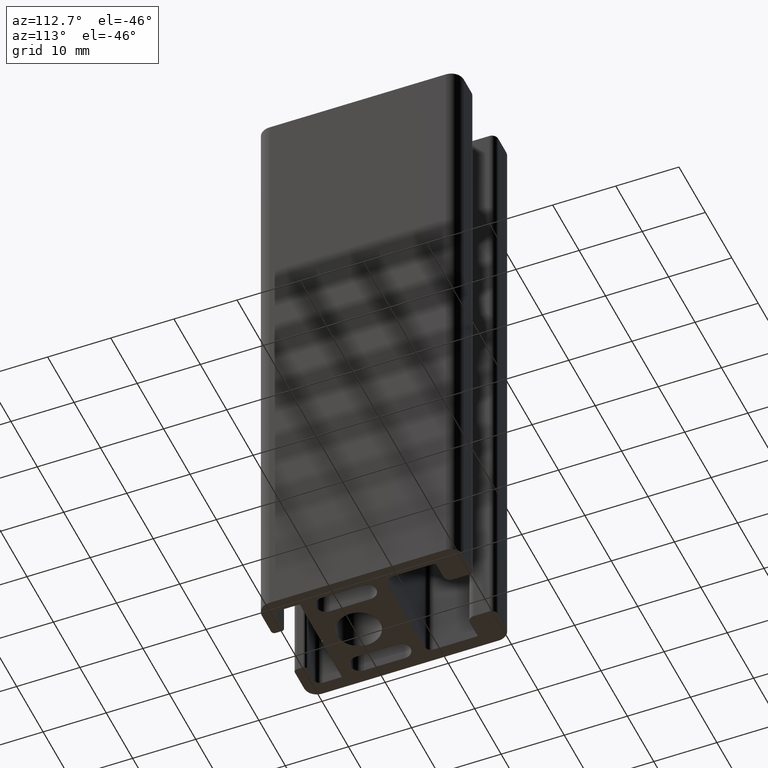
[diagram: clean part render]
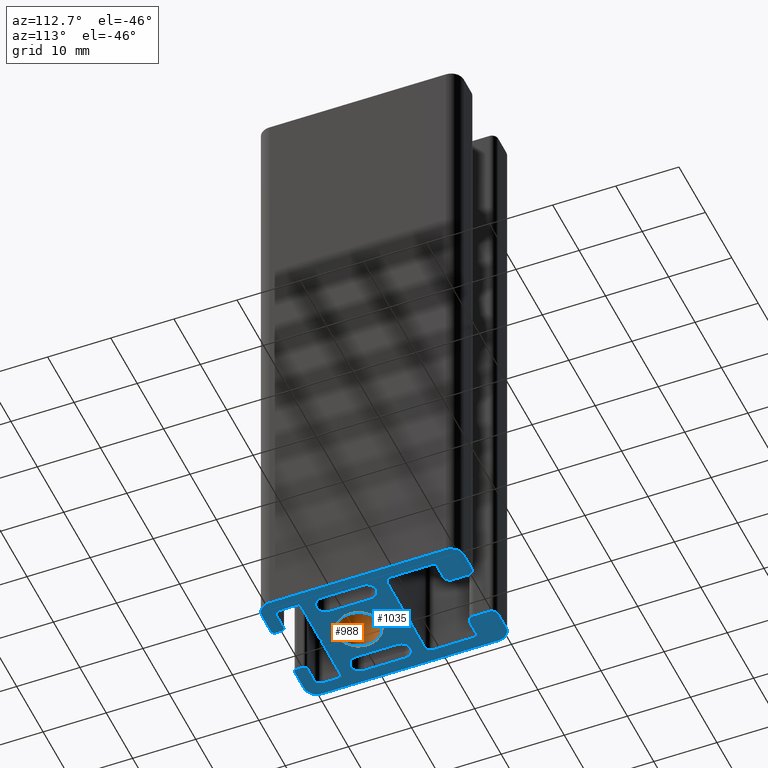
[diagram: same view with the hole feature highlighted: cylindrical wall and planar end face, labeled with their STEP entity ids]
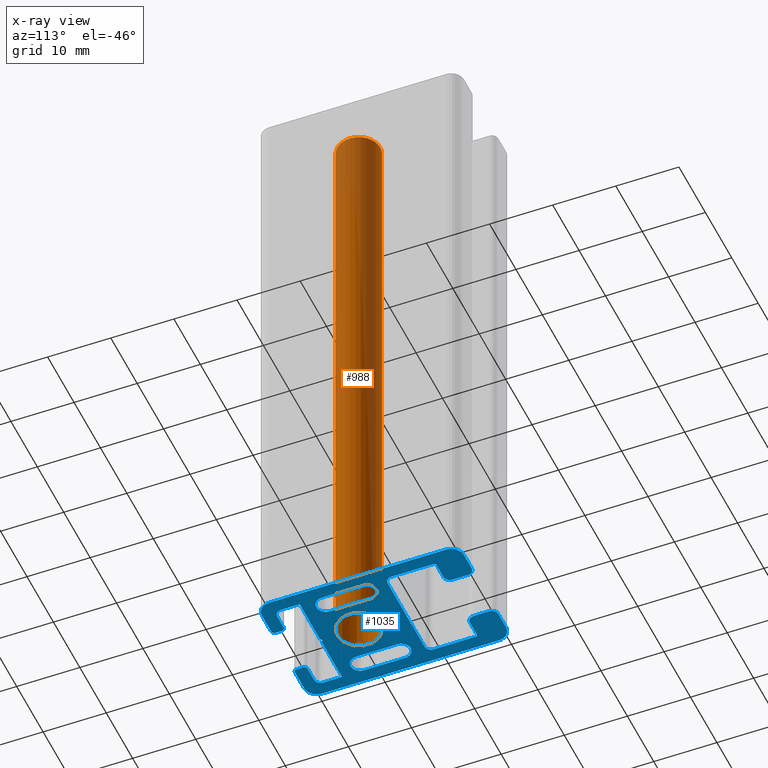
[diagram: x-ray of the same camera — body ghosted, the hole faces saturated]
A machine part, auxiliary view. The highlighted faces form one hole feature of diameter 6.8 mm: the cylindrical wall (entity #988, orange) and its adjacent planar end face (entity #1035, blue) — they share a circular edge in the B-rep.
The next image is the same camera in x-ray (body ghosted, the hole faces saturated) — the bore reads through the body.
Wall:
#15=FACE_BOUND('',#108,.T.);
#55=FACE_OUTER_BOUND('',#107,.T.);
#107=EDGE_LOOP('',(#679));
#108=EDGE_LOOP('',(#680));
#372=CIRCLE('',#1047,3.4);
#373=CIRCLE('',#1048,3.4);
#422=VERTEX_POINT('',#1463);
#423=VERTEX_POINT('',#1465);
#526=EDGE_CURVE('',#422,#422,#372,.T.);
#527=EDGE_CURVE('',#423,#423,#373,.T.);
#679=ORIENTED_EDGE('',*,*,#526,.F.);
#680=ORIENTED_EDGE('',*,*,#527,.F.);
#963=CYLINDRICAL_SURFACE('',#1046,3.4);
#988=ADVANCED_FACE('',(#55,#15),#963,.F.);
#1046=AXIS2_PLACEMENT_3D('',#1462,#1162,#1163);
#1047=AXIS2_PLACEMENT_3D('',#1464,#1164,#1165);
#1048=AXIS2_PLACEMENT_3D('',#1466,#1166,#1167);
#1162=DIRECTION('center_axis',(0.,0.,1.));
#1163=DIRECTION('ref_axis',(-1.,0.,0.));
#1164=DIRECTION('center_axis',(0.,0.,-1.));
#1165=DIRECTION('ref_axis',(-1.,0.,0.));
#1166=DIRECTION('center_axis',(0.,0.,1.));
#1167=DIRECTION('ref_axis',(-1.,0.,0.));
#1462=CARTESIAN_POINT('Origin',(0.,0.,0.));
#1463=CARTESIAN_POINT('',(3.4,-4.163799117101E-16,100.));
#1464=CARTESIAN_POINT('Origin',(0.,0.,100.));
#1465=CARTESIAN_POINT('',(3.4,4.163799117101E-16,0.));
#1466=CARTESIAN_POINT('Origin',(0.,0.,0.));
End face:
#19=FACE_BOUND('',#159,.T.);
#20=FACE_BOUND('',#160,.T.);
#21=FACE_BOUND('',#161,.T.);
#50=PLANE('',#1135);
#102=FACE_OUTER_BOUND('',#158,.T.);
#158=EDGE_LOOP('',(#911,#912,#913,#914,#915,#916,#917,#918,#919,#920,#921,
#922,#923,#924,#925,#926,#927,#928,#929,#930,#931,#932,#933,#934,#935,#936,
#937,#938,#939,#940,#941,#942,#943,#944,#945,#946,#947,#948,#949,#950,#951));
#159=EDGE_LOOP('',(#952,#953,#954,#955));
#160=EDGE_LOOP('',(#956));
#161=EDGE_LOOP('',(#957,#958,#959,#960));
#165=LINE('',#1451,#268);
#169=LINE('',#1461,#272);
#172=LINE('',#1474,#275);
#177=LINE('',#1487,#280);
#183=LINE('',#1513,#286);
#187=LINE('',#1525,#290);
#191=LINE('',#1537,#294);
#194=LINE('',#1543,#297);
#197=LINE('',#1549,#300);
#200=LINE('',#1555,#303);
#203=LINE('',#1561,#306);
#206=LINE('',#1567,#309);
#210=LINE('',#1579,#313);
#214=LINE('',#1589,#317);
#219=LINE('',#1604,#322);
#223=LINE('',#1616,#326);
#227=LINE('',#1628,#330);
#231=LINE('',#1640,#334);
#237=LINE('',#1661,#340);
#241=LINE('',#1673,#344);
#244=LINE('',#1682,#347);
#245=LINE('',#1685,#348);
#248=LINE('',#1691,#351);
#253=LINE('',#1700,#356);
#260=LINE('',#1723,#363);
#263=LINE('',#1733,#366);
#264=LINE('',#1737,#367);
#268=VECTOR('',#1149,6.5);
#272=VECTOR('',#1161,6.5);
#275=VECTOR('',#1172,6.5);
#280=VECTOR('',#1185,6.5);
#286=VECTOR('',#1211,0.999999999999999);
#290=VECTOR('',#1223,2.50000057528016);
#294=VECTOR('',#1235,3.00000057528016);
#297=VECTOR('',#1240,7.7);
#300=VECTOR('',#1245,0.424264068711929);
#303=VECTOR('',#1250,0.424264068711929);
#306=VECTOR('',#1255,7.7);
#309=VECTOR('',#1260,3.00000057528016);
#313=VECTOR('',#1272,2.50000057528015);
#317=VECTOR('',#1284,1.);
#322=VECTOR('',#1297,14.0000039919057);
#326=VECTOR('',#1309,6.70000144973492);
#330=VECTOR('',#1321,2.70000144973506);
#334=VECTOR('',#1333,2.50000399190595);
#340=VECTOR('',#1353,2.50000399190594);
#344=VECTOR('',#1365,2.70000144973507);
#347=VECTOR('',#1376,6.70000144973493);
#348=VECTOR('',#1379,3.50000000000001);
#351=VECTOR('',#1384,3.00000199595299);
#356=VECTOR('',#1391,3.00000199595298);
#363=VECTOR('',#1414,28.);
#366=VECTOR('',#1427,28.);
#367=VECTOR('',#1434,3.50000000000001);
#369=CIRCLE('',#1040,1.5);
#371=CIRCLE('',#1044,1.5);
#373=CIRCLE('',#1048,3.4);
#375=CIRCLE('',#1052,1.5);
#377=CIRCLE('',#1056,1.5);
#379=CIRCLE('',#1059,0.5);
#381=CIRCLE('',#1062,0.5);
#383=CIRCLE('',#1066,0.5);
#385=CIRCLE('',#1070,0.999999424719845);
#387=CIRCLE('',#1079,0.999999424719841);
#389=CIRCLE('',#1083,0.5);
#391=CIRCLE('',#1087,0.999998004047153);
#393=CIRCLE('',#1091,0.99999800404715);
#395=CIRCLE('',#1095,0.300000546217916);
#397=CIRCLE('',#1099,0.999998004047022);
#399=CIRCLE('',#1103,0.999998004047022);
#401=CIRCLE('',#1106,0.999998004047026);
#403=CIRCLE('',#1110,0.999998004047022);
#405=CIRCLE('',#1114,0.300000546217913);
#410=CIRCLE('',#1125,2.);
#411=CIRCLE('',#1128,1.99999999999999);
#412=CIRCLE('',#1130,2.);
#413=CIRCLE('',#1133,2.);
#416=VERTEX_POINT('',#1442);
#417=VERTEX_POINT('',#1444);
#419=VERTEX_POINT('',#1450);
#421=VERTEX_POINT('',#1456);
#423=VERTEX_POINT('',#1465);
#426=VERTEX_POINT('',#1471);
#427=VERTEX_POINT('',#1473);
#429=VERTEX_POINT('',#1479);
#431=VERTEX_POINT('',#1485);
#434=VERTEX_POINT('',#1495);
#435=VERTEX_POINT('',#1497);
#438=VERTEX_POINT('',#1504);
#439=VERTEX_POINT('',#1506);
#441=VERTEX_POINT('',#1512);
#443=VERTEX_POINT('',#1518);
#445=VERTEX_POINT('',#1524);
#447=VERTEX_POINT('',#1530);
#449=VERTEX_POINT('',#1536);
#451=VERTEX_POINT('',#1542);
#453=VERTEX_POINT('',#1548);
#455=VERTEX_POINT('',#1554);
#457=VERTEX_POINT('',#1560);
#459=VERTEX_POINT('',#1566);
#461=VERTEX_POINT('',#1572);
#463=VERTEX_POINT('',#1578);
#465=VERTEX_POINT('',#1584);
#468=VERTEX_POINT('',#1594);
#469=VERTEX_POINT('',#1596);
#471=VERTEX_POINT('',#1602);
#473=VERTEX_POINT('',#1608);
#475=VERTEX_POINT('',#1614);
#477=VERTEX_POINT('',#1620);
#479=VERTEX_POINT('',#1626);
#481=VERTEX_POINT('',#1632);
#483=VERTEX_POINT('',#1638);
#485=VERTEX_POINT('',#1644);
#488=VERTEX_POINT('',#1651);
#489=VERTEX_POINT('',#1653);
#491=VERTEX_POINT('',#1659);
#493=VERTEX_POINT('',#1665);
#495=VERTEX_POINT('',#1671);
#497=VERTEX_POINT('',#1677);
#498=VERTEX_POINT('',#1684);
#500=VERTEX_POINT('',#1690);
#503=VERTEX_POINT('',#1698);
#509=VERTEX_POINT('',#1715);
#510=VERTEX_POINT('',#1717);
#511=VERTEX_POINT('',#1721);
#512=VERTEX_POINT('',#1727);
#513=VERTEX_POINT('',#1731);
#516=EDGE_CURVE('',#417,#416,#369,.T.);
#519=EDGE_CURVE('',#419,#417,#165,.T.);
#522=EDGE_CURVE('',#421,#419,#371,.T.);
#525=EDGE_CURVE('',#416,#421,#169,.T.);
#527=EDGE_CURVE('',#423,#423,#373,.T.);
#530=EDGE_CURVE('',#427,#426,#172,.T.);
#534=EDGE_CURVE('',#426,#429,#375,.T.);
#537=EDGE_CURVE('',#429,#431,#177,.T.);
#539=EDGE_CURVE('',#431,#427,#377,.T.);
#542=EDGE_CURVE('',#435,#434,#379,.T.);
#546=EDGE_CURVE('',#439,#438,#381,.T.);
#549=EDGE_CURVE('',#441,#439,#183,.T.);
#552=EDGE_CURVE('',#443,#441,#383,.T.);
#555=EDGE_CURVE('',#445,#443,#187,.T.);
#558=EDGE_CURVE('',#447,#445,#385,.T.);
#561=EDGE_CURVE('',#449,#447,#191,.T.);
#564=EDGE_CURVE('',#451,#449,#194,.T.);
#567=EDGE_CURVE('',#453,#451,#197,.T.);
#570=EDGE_CURVE('',#455,#453,#200,.T.);
#573=EDGE_CURVE('',#457,#455,#203,.T.);
#576=EDGE_CURVE('',#459,#457,#206,.T.);
#579=EDGE_CURVE('',#461,#459,#387,.T.);
#582=EDGE_CURVE('',#463,#461,#210,.T.);
#585=EDGE_CURVE('',#465,#463,#389,.T.);
#588=EDGE_CURVE('',#434,#465,#214,.T.);
#591=EDGE_CURVE('',#469,#468,#391,.T.);
#595=EDGE_CURVE('',#468,#471,#219,.T.);
#598=EDGE_CURVE('',#471,#473,#393,.T.);
#601=EDGE_CURVE('',#473,#475,#223,.T.);
#604=EDGE_CURVE('',#475,#477,#395,.T.);
#607=EDGE_CURVE('',#477,#479,#227,.T.);
#610=EDGE_CURVE('',#479,#481,#397,.T.);
#613=EDGE_CURVE('',#481,#483,#231,.T.);
#616=EDGE_CURVE('',#483,#485,#399,.T.);
#619=EDGE_CURVE('',#489,#488,#401,.T.);
#623=EDGE_CURVE('',#488,#491,#237,.T.);
#626=EDGE_CURVE('',#491,#493,#403,.T.);
#629=EDGE_CURVE('',#493,#495,#241,.T.);
#632=EDGE_CURVE('',#495,#497,#405,.T.);
#634=EDGE_CURVE('',#497,#469,#244,.T.);
#635=EDGE_CURVE('',#498,#435,#245,.T.);
#638=EDGE_CURVE('',#500,#489,#248,.T.);
#643=EDGE_CURVE('',#485,#503,#253,.T.);
#652=EDGE_CURVE('',#510,#509,#410,.T.);
#655=EDGE_CURVE('',#509,#511,#260,.T.);
#656=EDGE_CURVE('',#511,#500,#411,.T.);
#658=EDGE_CURVE('',#503,#512,#412,.T.);
#660=EDGE_CURVE('',#512,#513,#263,.T.);
#661=EDGE_CURVE('',#513,#498,#413,.T.);
#662=EDGE_CURVE('',#438,#510,#264,.T.);
#911=ORIENTED_EDGE('',*,*,#546,.T.);
#912=ORIENTED_EDGE('',*,*,#662,.T.);
#913=ORIENTED_EDGE('',*,*,#652,.T.);
#914=ORIENTED_EDGE('',*,*,#655,.T.);
#915=ORIENTED_EDGE('',*,*,#656,.T.);
#916=ORIENTED_EDGE('',*,*,#638,.T.);
#917=ORIENTED_EDGE('',*,*,#619,.T.);
#918=ORIENTED_EDGE('',*,*,#623,.T.);
#919=ORIENTED_EDGE('',*,*,#626,.T.);
#920=ORIENTED_EDGE('',*,*,#629,.T.);
#921=ORIENTED_EDGE('',*,*,#632,.T.);
#922=ORIENTED_EDGE('',*,*,#634,.T.);
#923=ORIENTED_EDGE('',*,*,#591,.T.);
#924=ORIENTED_EDGE('',*,*,#595,.T.);
#925=ORIENTED_EDGE('',*,*,#598,.T.);
#926=ORIENTED_EDGE('',*,*,#601,.T.);
#927=ORIENTED_EDGE('',*,*,#604,.T.);
#928=ORIENTED_EDGE('',*,*,#607,.T.);
#929=ORIENTED_EDGE('',*,*,#610,.T.);
#930=ORIENTED_EDGE('',*,*,#613,.T.);
#931=ORIENTED_EDGE('',*,*,#616,.T.);
#932=ORIENTED_EDGE('',*,*,#643,.T.);
#933=ORIENTED_EDGE('',*,*,#658,.T.);
#934=ORIENTED_EDGE('',*,*,#660,.T.);
#935=ORIENTED_EDGE('',*,*,#661,.T.);
#936=ORIENTED_EDGE('',*,*,#635,.T.);
#937=ORIENTED_EDGE('',*,*,#542,.T.);
#938=ORIENTED_EDGE('',*,*,#588,.T.);
#939=ORIENTED_EDGE('',*,*,#585,.T.);
#940=ORIENTED_EDGE('',*,*,#582,.T.);
#941=ORIENTED_EDGE('',*,*,#579,.T.);
#942=ORIENTED_EDGE('',*,*,#576,.T.);
#943=ORIENTED_EDGE('',*,*,#573,.T.);
#944=ORIENTED_EDGE('',*,*,#570,.T.);
#945=ORIENTED_EDGE('',*,*,#567,.T.);
#946=ORIENTED_EDGE('',*,*,#564,.T.);
#947=ORIENTED_EDGE('',*,*,#561,.T.);
#948=ORIENTED_EDGE('',*,*,#558,.T.);
#949=ORIENTED_EDGE('',*,*,#555,.T.);
#950=ORIENTED_EDGE('',*,*,#552,.T.);
#951=ORIENTED_EDGE('',*,*,#549,.T.);
#952=ORIENTED_EDGE('',*,*,#516,.T.);
#953=ORIENTED_EDGE('',*,*,#525,.T.);
#954=ORIENTED_EDGE('',*,*,#522,.T.);
#955=ORIENTED_EDGE('',*,*,#519,.T.);
#956=ORIENTED_EDGE('',*,*,#527,.T.);
#957=ORIENTED_EDGE('',*,*,#530,.T.);
#958=ORIENTED_EDGE('',*,*,#534,.T.);
#959=ORIENTED_EDGE('',*,*,#537,.T.);
#960=ORIENTED_EDGE('',*,*,#539,.T.);
#1035=ADVANCED_FACE('',(#102,#19,#20,#21),#50,.F.);
#1040=AXIS2_PLACEMENT_3D('',#1445,#1143,#1144);
#1044=AXIS2_PLACEMENT_3D('',#1457,#1155,#1156);
#1048=AXIS2_PLACEMENT_3D('',#1466,#1166,#1167);
#1052=AXIS2_PLACEMENT_3D('',#1481,#1179,#1180);
#1056=AXIS2_PLACEMENT_3D('',#1490,#1190,#1191);
#1059=AXIS2_PLACEMENT_3D('',#1498,#1197,#1198);
#1062=AXIS2_PLACEMENT_3D('',#1507,#1205,#1206);
#1066=AXIS2_PLACEMENT_3D('',#1519,#1217,#1218);
#1070=AXIS2_PLACEMENT_3D('',#1531,#1229,#1230);
#1079=AXIS2_PLACEMENT_3D('',#1573,#1266,#1267);
#1083=AXIS2_PLACEMENT_3D('',#1585,#1278,#1279);
#1087=AXIS2_PLACEMENT_3D('',#1597,#1290,#1291);
#1091=AXIS2_PLACEMENT_3D('',#1610,#1303,#1304);
#1095=AXIS2_PLACEMENT_3D('',#1622,#1315,#1316);
#1099=AXIS2_PLACEMENT_3D('',#1634,#1327,#1328);
#1103=AXIS2_PLACEMENT_3D('',#1646,#1339,#1340);
#1106=AXIS2_PLACEMENT_3D('',#1654,#1346,#1347);
#1110=AXIS2_PLACEMENT_3D('',#1667,#1359,#1360);
#1114=AXIS2_PLACEMENT_3D('',#1679,#1371,#1372);
#1125=AXIS2_PLACEMENT_3D('',#1718,#1408,#1409);
#1128=AXIS2_PLACEMENT_3D('',#1725,#1417,#1418);
#1130=AXIS2_PLACEMENT_3D('',#1729,#1422,#1423);
#1133=AXIS2_PLACEMENT_3D('',#1735,#1430,#1431);
#1135=AXIS2_PLACEMENT_3D('',#1738,#1435,#1436);
#1143=DIRECTION('center_axis',(0.,0.,1.));
#1144=DIRECTION('ref_axis',(1.,0.,0.));
#1149=DIRECTION('',(0.,-1.,0.));
#1155=DIRECTION('center_axis',(0.,0.,1.));
#1156=DIRECTION('ref_axis',(-1.,0.,0.));
#1161=DIRECTION('',(-1.70803542250024E-16,1.,0.));
#1166=DIRECTION('center_axis',(0.,0.,1.));
#1167=DIRECTION('ref_axis',(-1.,0.,0.));
#1172=DIRECTION('',(-6.83214169000096E-16,1.,0.));
#1179=DIRECTION('center_axis',(0.,0.,1.));
#1180=DIRECTION('ref_axis',(-1.,0.,0.));
#1185=DIRECTION('',(-1.36642833800019E-15,-1.,0.));
#1190=DIRECTION('center_axis',(0.,0.,1.));
#1191=DIRECTION('ref_axis',(1.,0.,0.));
#1197=DIRECTION('center_axis',(0.,0.,-1.));
#1198=DIRECTION('ref_axis',(1.,0.,0.));
#1205=DIRECTION('center_axis',(0.,0.,-1.));
#1206=DIRECTION('ref_axis',(-1.11022302462512E-14,1.,0.));
#1211=DIRECTION('',(-1.11022302462516E-15,-1.,0.));
#1217=DIRECTION('center_axis',(0.,0.,-1.));
#1218=DIRECTION('ref_axis',(-1.,0.,0.));
#1223=DIRECTION('',(1.,-1.7763564306392E-15,0.));
#1229=DIRECTION('center_axis',(0.,0.,1.));
#1230=DIRECTION('ref_axis',(-1.,-1.1102236633148E-15,0.));
#1235=DIRECTION('',(0.,-1.,0.));
#1240=DIRECTION('',(-1.,0.,0.));
#1245=DIRECTION('',(-0.707106781186548,-0.707106781186548,0.));
#1250=DIRECTION('',(-0.707106781186548,0.707106781186548,0.));
#1255=DIRECTION('',(-1.,2.88369616785755E-16,0.));
#1260=DIRECTION('',(7.40148541152515E-16,1.,0.));
#1266=DIRECTION('center_axis',(0.,0.,1.));
#1267=DIRECTION('ref_axis',(-3.33067098994441E-15,-1.,0.));
#1272=DIRECTION('',(1.,0.,0.));
#1278=DIRECTION('center_axis',(0.,0.,-1.));
#1279=DIRECTION('ref_axis',(0.,-1.,0.));
#1284=DIRECTION('',(2.22044604925031E-15,1.,0.));
#1290=DIRECTION('center_axis',(0.,0.,1.));
#1291=DIRECTION('ref_axis',(-1.,0.,0.));
#1297=DIRECTION('',(1.,0.,0.));
#1303=DIRECTION('center_axis',(0.,0.,1.));
#1304=DIRECTION('ref_axis',(-1.11022524058239E-15,-1.,0.));
#1309=DIRECTION('',(-1.6570489319358E-16,1.,0.));
#1315=DIRECTION('center_axis',(0.,0.,1.));
#1316=DIRECTION('ref_axis',(1.,0.,0.));
#1321=DIRECTION('',(-1.,0.,0.));
#1327=DIRECTION('center_axis',(0.,0.,-1.));
#1328=DIRECTION('ref_axis',(1.,2.22045048116506E-15,0.));
#1333=DIRECTION('',(8.88177001492502E-16,1.,0.));
#1339=DIRECTION('center_axis',(0.,0.,-1.));
#1340=DIRECTION('ref_axis',(1.11022524058254E-14,-1.,0.));
#1346=DIRECTION('center_axis',(0.,0.,-1.));
#1347=DIRECTION('ref_axis',(-1.,0.,0.));
#1353=DIRECTION('',(0.,-1.,0.));
#1359=DIRECTION('center_axis',(0.,0.,-1.));
#1360=DIRECTION('ref_axis',(4.44090096233013E-15,1.,0.));
#1365=DIRECTION('',(-1.,-1.64477396815338E-15,0.));
#1371=DIRECTION('center_axis',(0.,0.,1.));
#1372=DIRECTION('ref_axis',(-1.48029467095532E-14,1.,0.));
#1376=DIRECTION('',(-6.62819572774319E-16,-1.,0.));
#1379=DIRECTION('',(-1.,0.,0.));
#1384=DIRECTION('',(1.,0.,0.));
#1391=DIRECTION('',(1.,0.,0.));
#1408=DIRECTION('center_axis',(0.,0.,-1.));
#1409=DIRECTION('ref_axis',(1.,1.11022302462516E-15,0.));
#1414=DIRECTION('',(-1.58603289232165E-16,1.,0.));
#1417=DIRECTION('center_axis',(0.,0.,-1.));
#1418=DIRECTION('ref_axis',(-2.7755575615629E-15,-1.,0.));
#1422=DIRECTION('center_axis',(0.,0.,-1.));
#1423=DIRECTION('ref_axis',(-1.,-1.11022302462516E-15,0.));
#1427=DIRECTION('',(1.18952466924124E-16,-1.,0.));
#1430=DIRECTION('center_axis',(0.,0.,-1.));
#1431=DIRECTION('ref_axis',(-1.11022302462516E-15,1.,0.));
#1434=DIRECTION('',(-1.,0.,0.));
#1435=DIRECTION('center_axis',(0.,0.,1.));
#1436=DIRECTION('ref_axis',(1.,0.,0.));
#1442=CARTESIAN_POINT('',(8.,-2.5,0.));
#1444=CARTESIAN_POINT('',(5.,-2.5,0.));
#1445=CARTESIAN_POINT('Origin',(6.5,-2.5,0.));
#1450=CARTESIAN_POINT('',(5.,4.,0.));
#1451=CARTESIAN_POINT('',(5.,4.,0.));
#1456=CARTESIAN_POINT('',(8.,4.,0.));
#1457=CARTESIAN_POINT('Origin',(6.5,4.,0.));
#1461=CARTESIAN_POINT('',(8.,0.75,0.));
#1465=CARTESIAN_POINT('',(3.4,4.163799117101E-16,0.));
#1466=CARTESIAN_POINT('Origin',(0.,0.,0.));
#1471=CARTESIAN_POINT('',(-5.,4.,0.));
#1473=CARTESIAN_POINT('',(-5.,-2.5,0.));
#1474=CARTESIAN_POINT('',(-5.,0.749999999999999,0.));
#1479=CARTESIAN_POINT('',(-7.99999999999999,4.,0.));
#1481=CARTESIAN_POINT('Origin',(-6.5,4.,0.));
#1485=CARTESIAN_POINT('',(-8.,-2.5,0.));
#1487=CARTESIAN_POINT('',(-7.99999999999999,4.00000000000001,0.));
#1490=CARTESIAN_POINT('Origin',(-6.5,-2.5,0.));
#1495=CARTESIAN_POINT('',(4.,-11.5,0.));
#1497=CARTESIAN_POINT('',(4.49999999999999,-12.,0.));
#1498=CARTESIAN_POINT('Origin',(4.5,-11.5,0.));
#1504=CARTESIAN_POINT('',(-4.49999999999999,-12.,0.));
#1506=CARTESIAN_POINT('',(-4.,-11.5,0.));
#1507=CARTESIAN_POINT('Origin',(-4.5,-11.5,0.));
#1512=CARTESIAN_POINT('',(-4.,-10.5,0.));
#1513=CARTESIAN_POINT('',(-3.99999999999999,-3.25,0.));
#1518=CARTESIAN_POINT('',(-4.5,-10.,0.));
#1519=CARTESIAN_POINT('Origin',(-4.5,-10.5,0.));
#1524=CARTESIAN_POINT('',(-7.00000057528016,-10.,0.));
#1525=CARTESIAN_POINT('',(-3.50000028764009,-10.,0.));
#1530=CARTESIAN_POINT('',(-8.,-9.00000057528016,0.));
#1531=CARTESIAN_POINT('Origin',(-7.00000057528016,-9.00000057528016,0.));
#1536=CARTESIAN_POINT('',(-8.,-6.,0.));
#1537=CARTESIAN_POINT('',(-8.,-1.,0.));
#1542=CARTESIAN_POINT('',(-0.300000000000002,-6.,0.));
#1543=CARTESIAN_POINT('',(-0.150000000000002,-6.,0.));
#1548=CARTESIAN_POINT('',(-2.22044604925031E-15,-5.7,0.));
#1549=CARTESIAN_POINT('',(2.425,-3.275,0.));
#1554=CARTESIAN_POINT('',(0.299999999999998,-6.,0.));
#1555=CARTESIAN_POINT('',(-2.275,-3.425,0.));
#1560=CARTESIAN_POINT('',(8.,-6.,0.));
#1561=CARTESIAN_POINT('',(4.,-6.,0.));
#1566=CARTESIAN_POINT('',(7.99999999999999,-9.00000057528016,0.));
#1567=CARTESIAN_POINT('',(8.,-2.50000028764008,0.));
#1572=CARTESIAN_POINT('',(7.00000057528015,-10.,0.));
#1573=CARTESIAN_POINT('Origin',(7.00000057528015,-9.00000057528016,0.));
#1578=CARTESIAN_POINT('',(4.5,-10.,0.));
#1579=CARTESIAN_POINT('',(2.25,-10.,0.));
#1584=CARTESIAN_POINT('',(4.,-10.5,0.));
#1585=CARTESIAN_POINT('Origin',(4.5,-10.5,0.));
#1589=CARTESIAN_POINT('',(4.00000000000002,-3.75000000000001,0.));
#1594=CARTESIAN_POINT('',(-7.00000199595285,7.5,0.));
#1596=CARTESIAN_POINT('',(-8.00000000000001,8.49999800404716,0.));
#1597=CARTESIAN_POINT('Origin',(-7.00000199595285,8.49999800404716,0.));
#1602=CARTESIAN_POINT('',(7.00000199595285,7.5,0.));
#1604=CARTESIAN_POINT('',(-3.50000099797642,7.5,0.));
#1608=CARTESIAN_POINT('',(8.,8.49999800404716,0.));
#1610=CARTESIAN_POINT('Origin',(7.00000199595285,8.49999800404716,0.));
#1614=CARTESIAN_POINT('',(8.,15.1999994537821,0.));
#1616=CARTESIAN_POINT('',(8.,6.24999900202358,0.));
#1620=CARTESIAN_POINT('',(7.69999945378209,15.5,0.));
#1622=CARTESIAN_POINT('Origin',(7.69999945378208,15.1999994537821,0.));
#1626=CARTESIAN_POINT('',(4.99999800404702,15.5,0.));
#1628=CARTESIAN_POINT('',(3.84999972689104,15.5,0.));
#1632=CARTESIAN_POINT('',(4.,16.499998004047,0.));
#1634=CARTESIAN_POINT('Origin',(4.99999800404702,16.499998004047,0.));
#1638=CARTESIAN_POINT('',(4.,19.000001995953,0.));
#1640=CARTESIAN_POINT('',(4.,10.2499990020235,0.));
#1644=CARTESIAN_POINT('',(4.99999800404701,20.,0.));
#1646=CARTESIAN_POINT('Origin',(4.99999800404703,19.000001995953,0.));
#1651=CARTESIAN_POINT('',(-4.,19.000001995953,0.));
#1653=CARTESIAN_POINT('',(-4.99999800404701,20.,0.));
#1654=CARTESIAN_POINT('Origin',(-4.99999800404702,19.000001995953,0.));
#1659=CARTESIAN_POINT('',(-4.,16.499998004047,0.));
#1661=CARTESIAN_POINT('',(-4.,11.5000009979765,0.));
#1665=CARTESIAN_POINT('',(-4.99999800404702,15.5,0.));
#1667=CARTESIAN_POINT('Origin',(-4.99999800404702,16.499998004047,0.));
#1671=CARTESIAN_POINT('',(-7.69999945378209,15.5,0.));
#1673=CARTESIAN_POINT('',(-2.49999900202352,15.5,0.));
#1677=CARTESIAN_POINT('',(-8.,15.1999994537821,0.));
#1679=CARTESIAN_POINT('Origin',(-7.69999945378209,15.1999994537821,0.));
#1682=CARTESIAN_POINT('',(-8.00000000000001,9.59999972689105,0.));
#1684=CARTESIAN_POINT('',(8.,-12.,0.));
#1685=CARTESIAN_POINT('',(-4.,-12.,0.));
#1690=CARTESIAN_POINT('',(-8.00000000000001,20.,0.));
#1691=CARTESIAN_POINT('',(4.,20.,0.));
#1698=CARTESIAN_POINT('',(8.,20.,0.));
#1700=CARTESIAN_POINT('',(4.,20.,0.));
#1715=CARTESIAN_POINT('',(-10.,-10.,0.));
#1717=CARTESIAN_POINT('',(-8.,-12.,0.));
#1718=CARTESIAN_POINT('Origin',(-8.,-10.,0.));
#1721=CARTESIAN_POINT('',(-10.,18.,0.));
#1723=CARTESIAN_POINT('',(-10.,11.,0.));
#1725=CARTESIAN_POINT('Origin',(-8.00000000000001,18.,0.));
#1727=CARTESIAN_POINT('',(10.,18.,0.));
#1729=CARTESIAN_POINT('Origin',(8.,18.,0.));
#1731=CARTESIAN_POINT('',(10.,-10.,0.));
#1733=CARTESIAN_POINT('',(10.,-3.,0.));
#1735=CARTESIAN_POINT('Origin',(8.,-10.,0.));
#1737=CARTESIAN_POINT('',(-4.,-12.,0.));
#1738=CARTESIAN_POINT('Origin',(-1.11022302462516E-15,4.,0.));